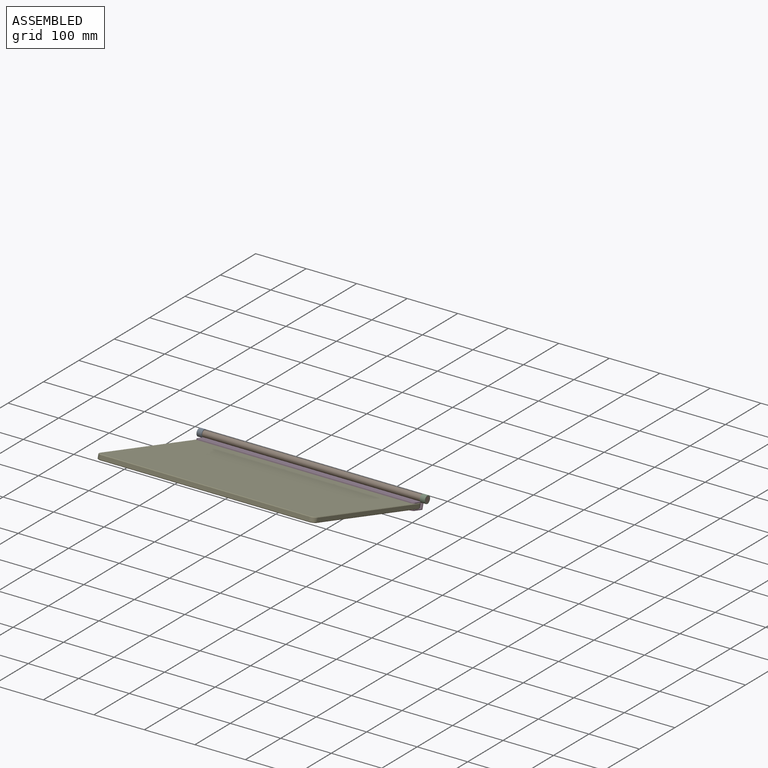
[diagram: assembled view]
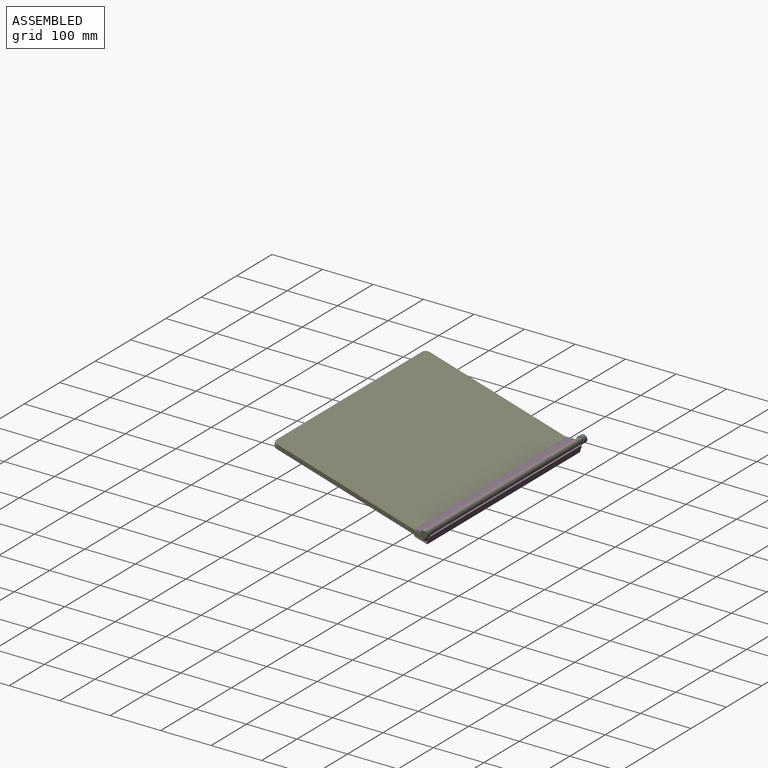
[diagram: assembled view, second angle]
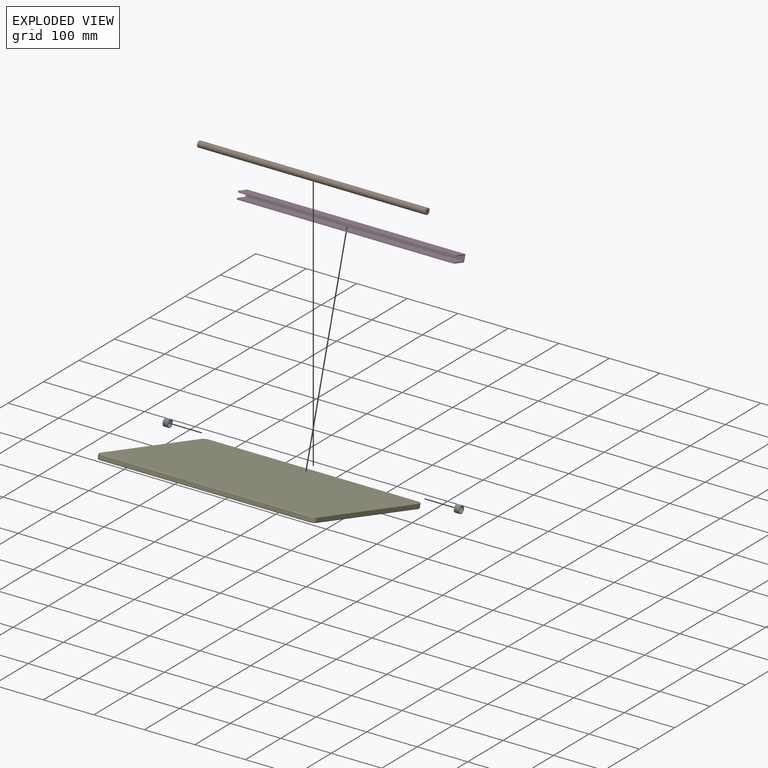
[diagram: exploded view]
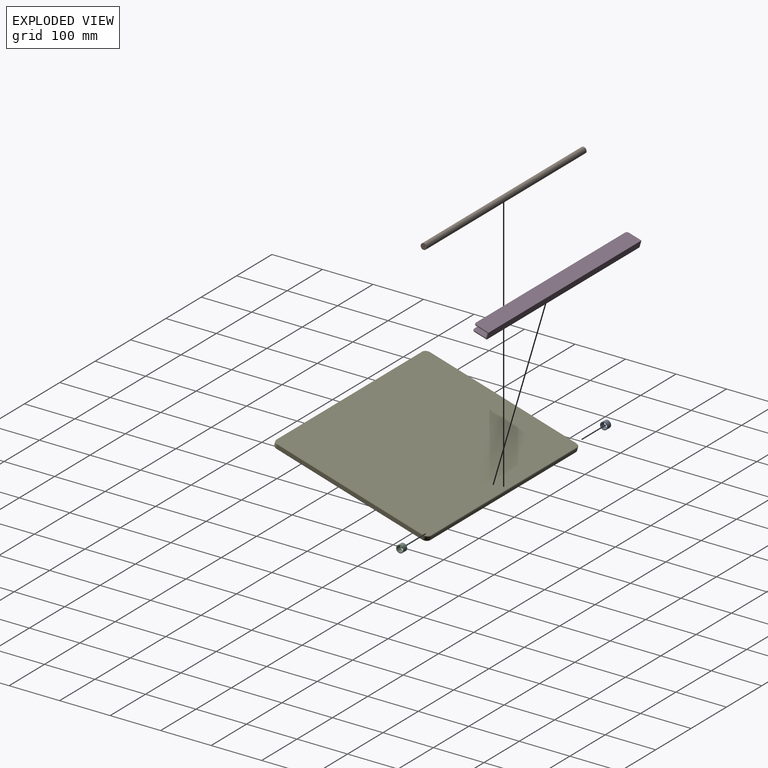
[diagram: exploded view, second angle]
ASSEMBLY  parts=5 mates=9
PART A: 4 faces, bbox 10x15x15 mm
  f0: cylinder r=6mm len=12mm, axis (-1,0,0), area 377mm2, adj f2,f3
  f1: cylinder r=7.5mm len=15mm, axis (-1,0,0), area 471.2mm2, adj f2,f3
  f2: plane 15x15mm, normal (1,0,0), area 63.6mm2, adj f0,f1
  f3: plane 15x15mm, normal (-1,0,0), area 63.6mm2, adj f0,f1
PART B: 3 faces, bbox 452x12x12 mm
  f0: cylinder r=6mm len=452mm, axis (-1,0,0), area 17040mm2, adj f1,f2
  f1: plane 12x12mm, normal (1,0,0), area 113.1mm2, adj f0
  f2: plane 12x12mm, normal (-1,0,0), area 113.1mm2, adj f0
PART C: 4 faces, bbox 10x15x15 mm
  f0: cylinder r=6mm len=12mm, axis (1,0,0), area 377mm2, adj f2,f3
  f1: cylinder r=7.5mm len=15mm, axis (1,0,0), area 471.2mm2, adj f2,f3
  f2: plane 15x15mm, normal (-1,0,0), area 63.6mm2, adj f0,f1
  f3: plane 15x15mm, normal (1,0,0), area 63.6mm2, adj f0,f1
PART D: 14 faces, bbox 432x30x14 mm
  f0: plane 432x28mm, normal (0,0,-1), area 12085.3mm2, adj f1,f7,f8,f9,f11,f13
  f1: plane 432x10mm, normal (0,-1,0), area 4320mm2, adj f0,f2,f8,f9
  f2: plane 432x28mm, normal (0,0,1), area 12085.3mm2, adj f1,f3,f8,f9,f10,f12
  f3: plane 422x2mm, normal (0,-1,0), area 844mm2, adj f2,f4,f10,f12
  f4: plane 432x30mm, normal (0,0,-1), area 12949.3mm2, adj f3,f5,f8,f9,f10,f12
  f5: plane 432x14mm, normal (0,1,0), area 6048mm2, adj f4,f6,f8,f9
  f6: plane 432x30mm, normal (0,0,1), area 12949.3mm2, adj f5,f7,f8,f9,f11,f13
  f7: plane 422x2mm, normal (0,-1,0), area 844mm2, adj f0,f6,f11,f13
  f8: plane 25x14mm, normal (1,0,0), area 120mm2, adj f0,f1,f2,f4,f5,f6,f12,f13
  f9: plane 25x14mm, normal (-1,0,0), area 120mm2, adj f0,f1,f2,f4,f5,f6,f10,f11
  f10: cylinder r=5mm len=5mm, axis (0,0,-1), area 15.7mm2, adj f2,f3,f4,f9
  f11: cylinder r=5mm len=5mm, axis (0,0,-1), area 15.7mm2, adj f0,f6,f7,f9
  f12: cylinder r=5mm len=5mm, axis (0,0,1), area 15.7mm2, adj f2,f3,f4,f8
  f13: cylinder r=5mm len=5mm, axis (0,0,1), area 15.7mm2, adj f0,f6,f7,f8
PART E: 26 faces, bbox 432x320x10 mm
  f0: plane 412x8mm, normal (0,1,0), area 3296mm2, adj f6,f9,f14,f22
  f1: plane 300x8mm, normal (-1,0,0), area 2400mm2, adj f6,f7,f10,f18
  f2: plane 412x8mm, normal (0,-1,0), area 3296mm2, adj f7,f8,f13,f21
  f3: plane 300x8mm, normal (1,0,0), area 2400mm2, adj f8,f9,f17,f25
  f4: plane 430x318mm, normal (0,0,1), area 136670.5mm2, adj f18,f19,f20,f21,f22,f23,f24,f25
  f5: plane 430x318mm, normal (0,0,-1), area 136670.5mm2, adj f10,f11,f12,f13,f14,f15,f16,f17
  f6: cylinder r=10mm len=10mm, axis (0,0,-1), area 125.7mm2, adj f0,f1,f12,f20
  f7: cylinder r=10mm len=10mm, axis (0,0,1), area 125.7mm2, adj f1,f2,f11,f19
  f8: cylinder r=10mm len=10mm, axis (0,0,-1), area 125.7mm2, adj f2,f3,f15,f23
  f9: cylinder r=10mm len=10mm, axis (0,0,1), area 125.7mm2, adj f0,f3,f16,f24
  f10: plane 300x1mm, normal (-0.71,0,-0.71), area 424.3mm2, adj f1,f5,f11,f12
  f11: cone r=9mm half-angle=45deg, axis (0,0,1), area 21.1mm2, adj f5,f7,f10,f13
  f12: cone r=9mm half-angle=45deg, axis (0,0,1), area 21.1mm2, adj f5,f6,f10,f14
  f13: plane 412x1mm, normal (0,-0.71,-0.71), area 582.7mm2, adj f2,f5,f11,f15
  f14: plane 412x1mm, normal (0,0.71,-0.71), area 582.7mm2, adj f0,f5,f12,f16
  f15: cone r=9mm half-angle=45deg, axis (0,0,1), area 21.1mm2, adj f5,f8,f13,f17
  f16: cone r=9mm half-angle=45deg, axis (0,0,1), area 21.1mm2, adj f5,f9,f14,f17
  f17: plane 300x1mm, normal (0.71,0,-0.71), area 424.3mm2, adj f3,f5,f15,f16
  f18: plane 300x1mm, normal (-0.71,0,0.71), area 424.3mm2, adj f1,f4,f19,f20
  f19: cone r=9mm half-angle=45deg, axis (0,0,-1), area 21.1mm2, adj f4,f7,f18,f21
  f20: cone r=9mm half-angle=45deg, axis (0,0,-1), area 21.1mm2, adj f4,f6,f18,f22
  f21: plane 412x1mm, normal (0,-0.71,0.71), area 582.7mm2, adj f2,f4,f19,f23
  f22: plane 412x1mm, normal (0,0.71,0.71), area 582.7mm2, adj f0,f4,f20,f24
  f23: cone r=9mm half-angle=45deg, axis (0,0,-1), area 21.1mm2, adj f4,f8,f21,f25
  f24: cone r=9mm half-angle=45deg, axis (0,0,-1), area 21.1mm2, adj f4,f9,f22,f25
  f25: plane 300x1mm, normal (0.71,0,0.71), area 424.3mm2, adj f3,f4,f23,f24
PLACE A t=(12.76,19.8,98.8)mm
PLACE B t=(12.76,19.8,98.8)mm
PLACE C t=(12.76,19.8,98.8)mm
PLACE D rot(axis=(-1,0,0),16.5deg) t=(12.76,33.09,130.74)mm
PLACE E rot(axis=(-1,0,0),16.5deg) t=(12.76,33.09,130.74)mm
MATE planar C.f0 <-> B.f0  axis (1,0,0) through (238.76,187.8,103.8)mm
MATE planar D.f10 <-> E.f5  axis (0,0.28,0.96) through (-198.24,164.48,91.92)mm
MATE planar E.f1 <-> B.f0  axis (-1,0,0) through (-203.24,34.51,135.54)mm
MATE planar B.f0 <-> A.f0  axis (-1,0,0) through (-213.24,187.8,103.8)mm
MATE cylindrical A.f0 <-> A.f0  axis (-1,0,0) through (-213.24,187.8,103.8)mm
MATE planar E.f1 <-> D.f9  axis (-1,0,0) through (-203.24,177.23,89.2)mm
MATE planar E.f0 <-> D.f1  axis (0,0.96,-0.28) through (12.76,187.95,90.2)mm
MATE cylindrical C.f0 <-> B.f0  axis (1,0,0) through (238.76,187.8,103.8)mm
MATE cylindrical B.f0 <-> A.f0  axis (-1,0,0) through (-213.24,187.8,103.8)mm
